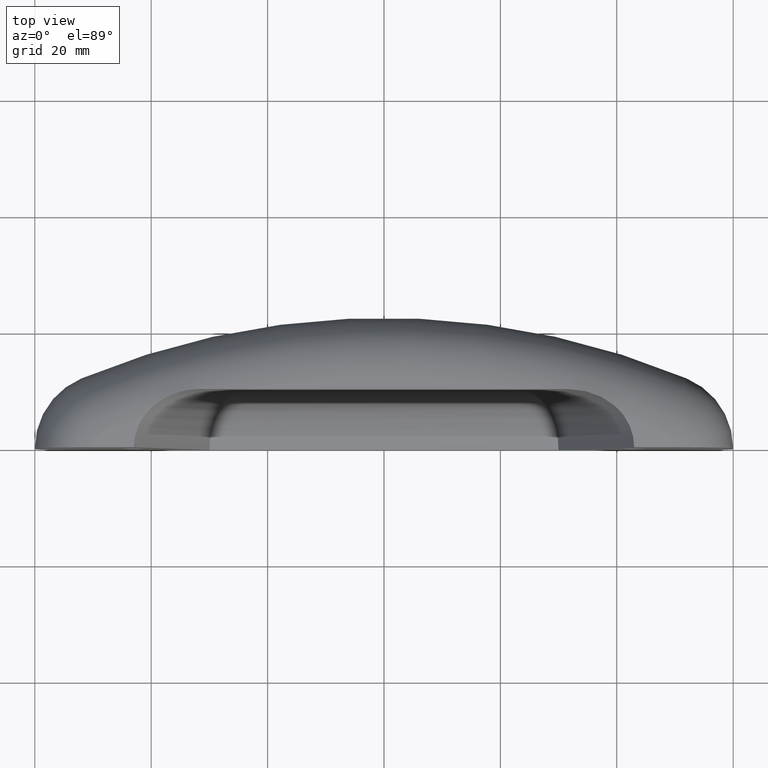
[diagram: clean part render]
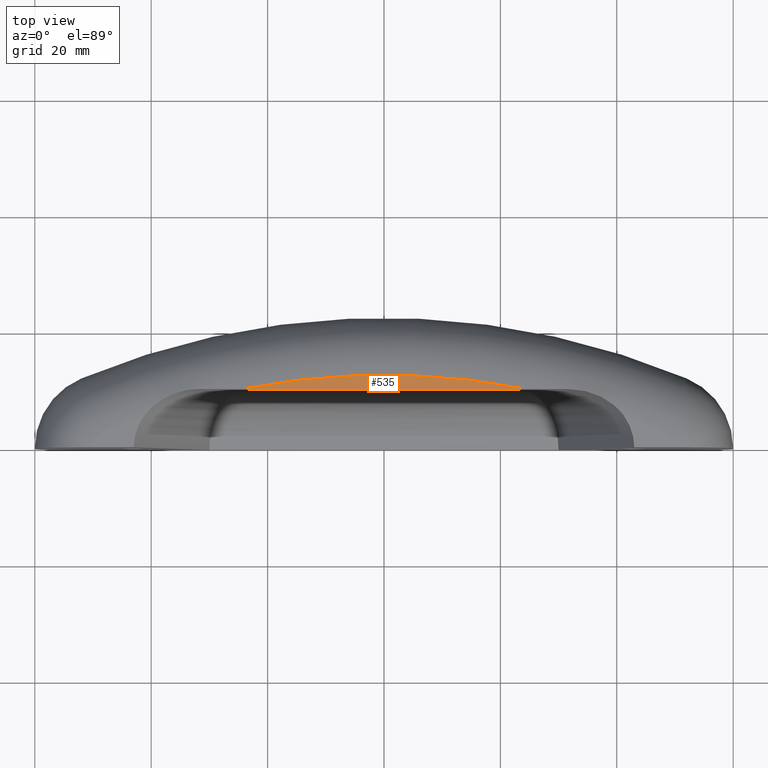
[diagram: same view with one face highlighted and labeled with its STEP entity id]
A machine part, top view. The second image highlights one B-rep face of the part: STEP entity #535.
In plain terms, the highlighted planar face has unit normal (-0, 0, -1).
Its self-contained STEP definition (entity closure, byte-faithful):
#14 = FACE_OUTER_BOUND ( 'NONE', #616, .T. ) ;
#20 = CIRCLE ( 'NONE', #116, 125.2000000000006700 ) ;
#36 = CARTESIAN_POINT ( 'NONE',  ( -17.00000000000000000, 9.999999999999998200, 30.00000000000000000 ) ) ;
#116 = AXIS2_PLACEMENT_3D ( 'NONE', #200, #201, #202 ) ;
#126 = AXIS2_PLACEMENT_3D ( 'NONE', #336, #337, #338 ) ;
#157 = EDGE_CURVE ( 'NONE', #350, #379, #652, .T. ) ;
#200 = CARTESIAN_POINT ( 'NONE',  ( -60.00000000000000000, -112.8000000000007600, 30.00000000000000000 ) ) ;
#201 = DIRECTION ( 'NONE',  ( 0.0000000000000000000, 0.0000000000000000000, 1.000000000000000000 ) ) ;
#202 = DIRECTION ( 'NONE',  ( -1.000000000000000000, -2.660278812999562100E-015, 0.0000000000000000000 ) ) ;
#335 = PLANE ( 'NONE',  #126 ) ;
#336 = CARTESIAN_POINT ( 'NONE',  ( -13.00000000000001800, -2.081668171172168500E-014, 30.00000000000000000 ) ) ;
#337 = DIRECTION ( 'NONE',  ( -0.0000000000000000000, 0.0000000000000000000, -1.000000000000000000 ) ) ;
#338 = DIRECTION ( 'NONE',  ( -1.000000000000000000, 0.0000000000000000000, 0.0000000000000000000 ) ) ;
#350 = VERTEX_POINT ( 'NONE', #476 ) ;
#379 = VERTEX_POINT ( 'NONE', #506 ) ;
#476 = CARTESIAN_POINT ( 'NONE',  ( -35.60327890881890100, 9.999999999999996400, 30.00000000000000000 ) ) ;
#506 = CARTESIAN_POINT ( 'NONE',  ( -84.39672109116274600, 9.999999999999976900, 30.00000000000000000 ) ) ;
#535 = ADVANCED_FACE ( 'NONE', ( #14 ), #335, .F. ) ;
#549 = ORIENTED_EDGE ( 'NONE', *, *, #738, .T. ) ;
#616 = EDGE_LOOP ( 'NONE', ( #637, #549 ) ) ;
#630 = DIRECTION ( 'NONE',  ( -1.000000000000000000, -1.224646799147353500E-016, 0.0000000000000000000 ) ) ;
#637 = ORIENTED_EDGE ( 'NONE', *, *, #157, .F. ) ;
#652 = LINE ( 'NONE', #36, #653 ) ;
#653 = VECTOR ( 'NONE', #630, 1000.000000000000000 ) ;
#738 = EDGE_CURVE ( 'NONE', #350, #379, #20, .T. ) ;